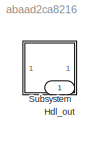
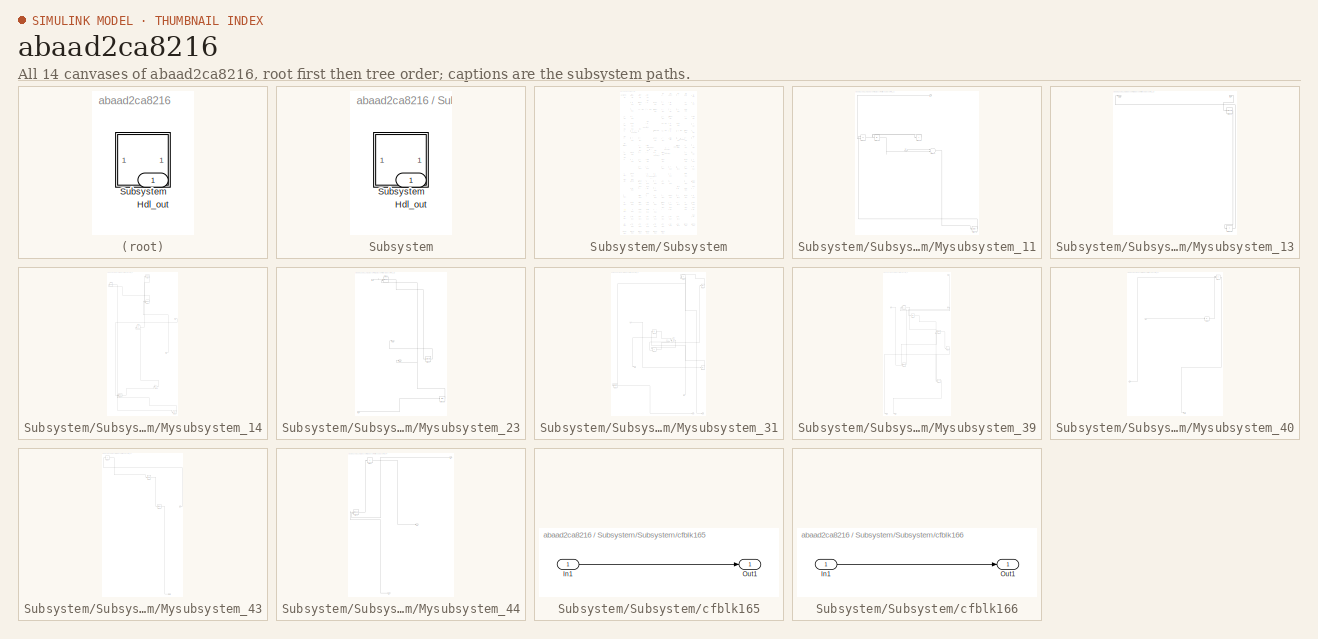
[diagram: thumbnail index - all 14 canvases of the model, root first then tree order]
MODEL slx_abaad2ca8216
KIND model
CONFIG AbsTol = auto
CONFIG EnableMultiTasking = off
CONFIG FixedStep = auto
CONFIG MaxStep = auto
CONFIG MinStep = auto
CONFIG RelTol = 1e-3
CONFIG SampleTimeConstraint = Unconstrained
CONFIG SolverName = VariableStepAuto
CONFIG StartTime = 0.0
CONFIG StopTime = 10.0
BLOCK [Outport] Hdl_out
  OutDataTypeStr = uint8
BLOCK [SubSystem] Subsystem
BLOCK [Outport] Subsystem/Hdl_out
  OutDataTypeStr = uint8
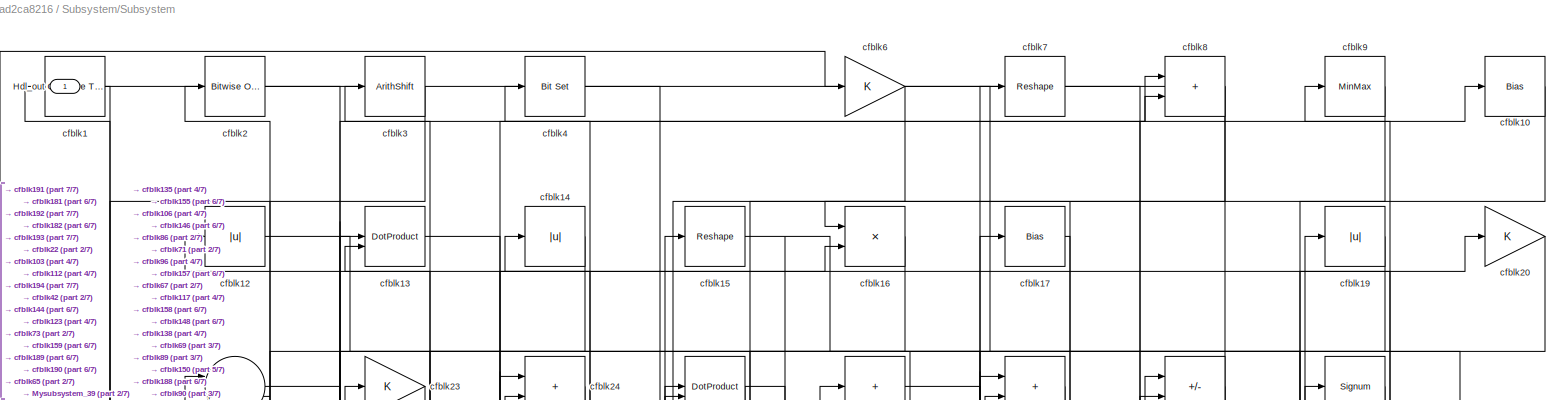
[diagram: Subsystem/Subsystem - part 1/7, full width, top band]
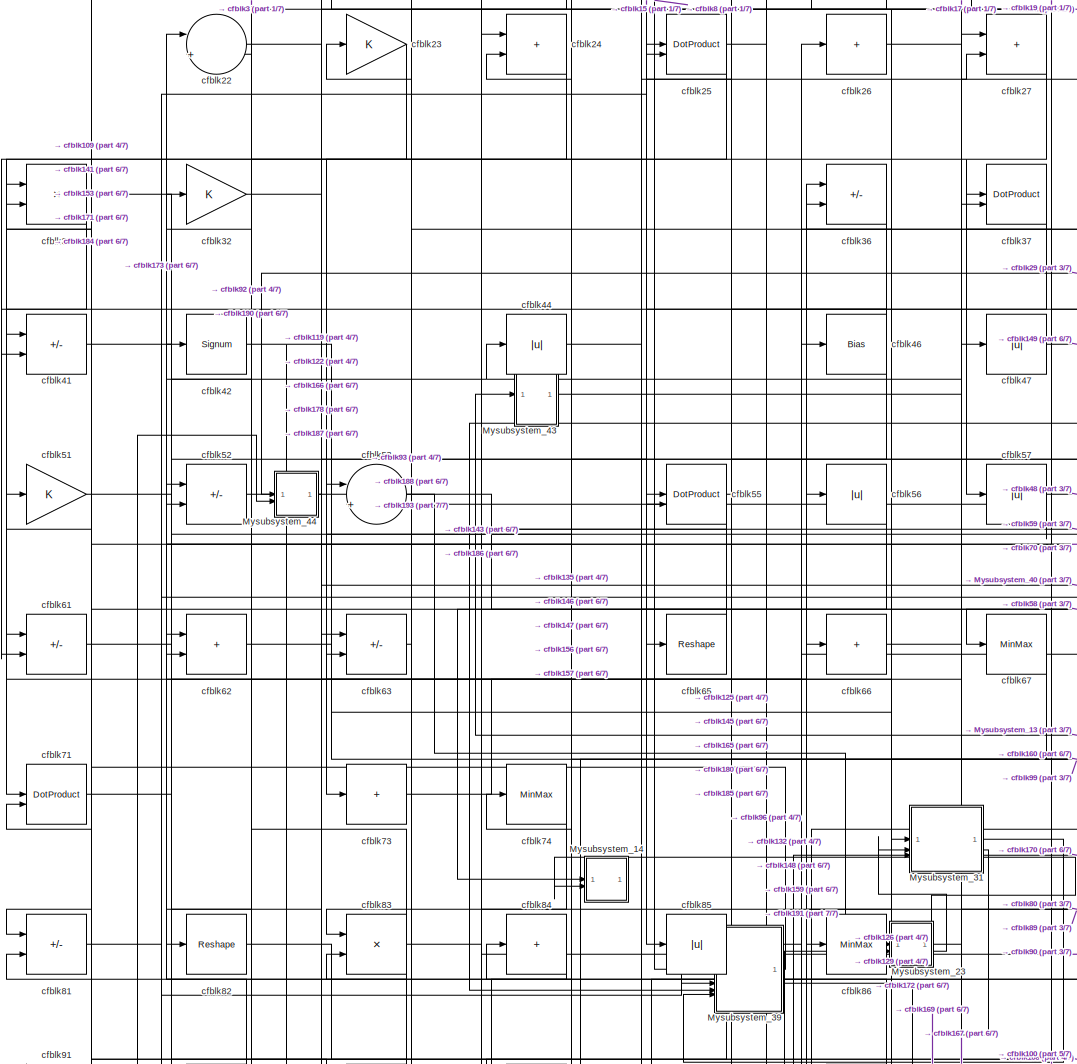
[diagram: Subsystem/Subsystem - part 2/7, top center region]
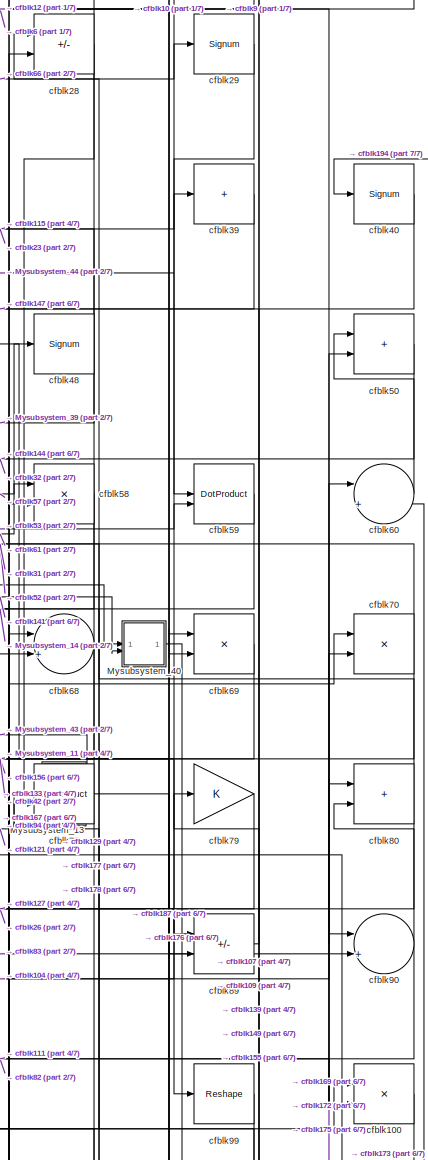
[diagram: Subsystem/Subsystem - part 3/7, top right region]
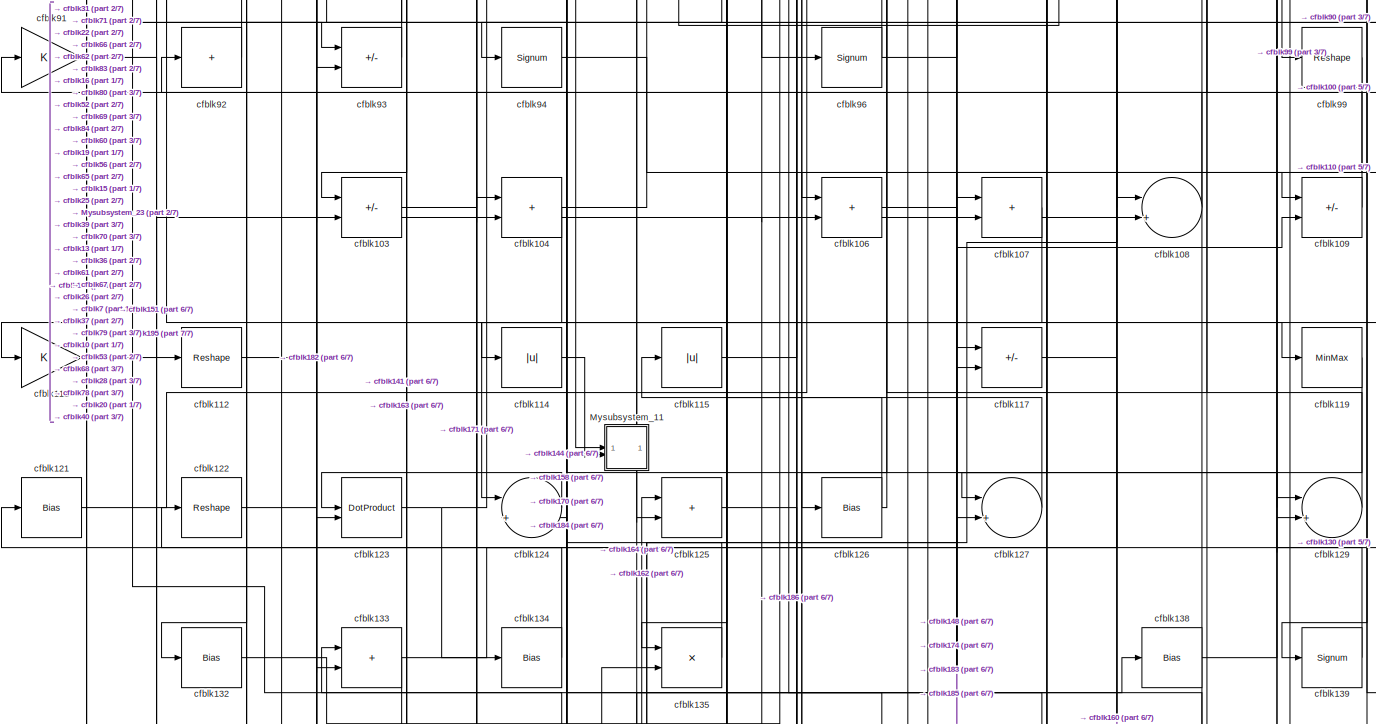
[diagram: Subsystem/Subsystem - part 4/7, full width, middle band]
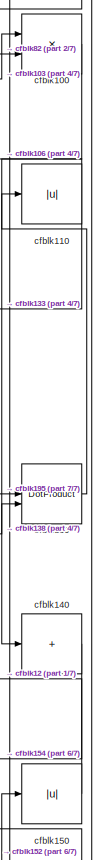
[diagram: Subsystem/Subsystem - part 5/7, middle right region]
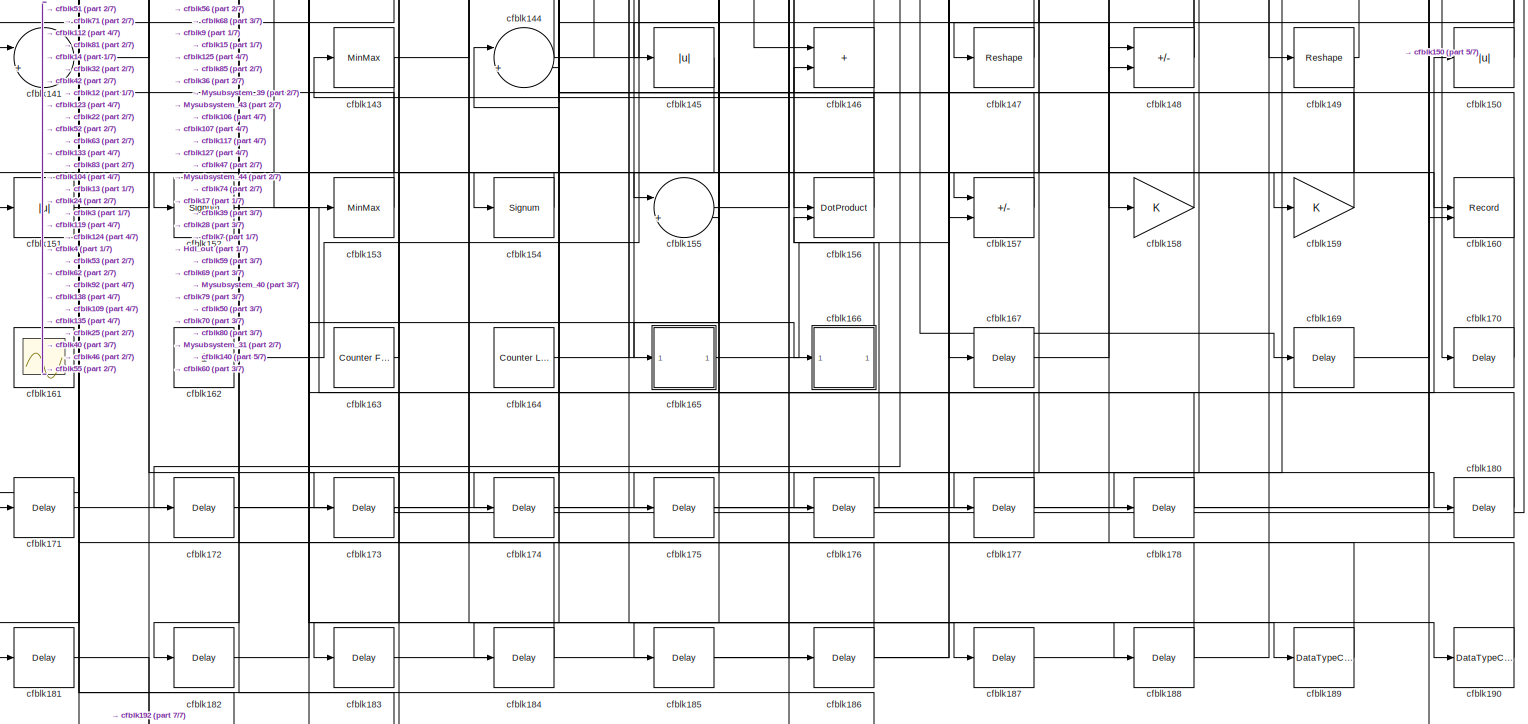
[diagram: Subsystem/Subsystem - part 6/7, full width, bottom band]
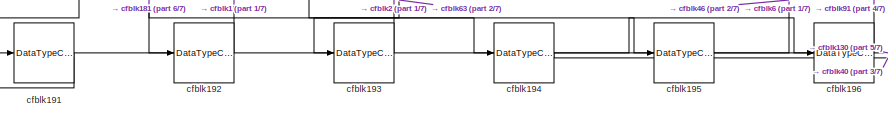
[diagram: Subsystem/Subsystem - part 7/7, bottom left region]
BLOCK [SubSystem] Subsystem/Subsystem
BLOCK [Outport] Subsystem/Subsystem/Hdl_out
  OutDataTypeStr = uint8
BLOCK [SubSystem] Subsystem/Subsystem/Mysubsystem_11
  RTWFcnName = Mysubsystem_11
  RTWFcnNameOpts = User specified
  RTWFileNameOpts = Use function name
  RTWSystemCode = Reusable function
  TreatAsAtomicUnit = on
BLOCK [Inport] Subsystem/Subsystem/Mysubsystem_11/In1
BLOCK [Inport] Subsystem/Subsystem/Mysubsystem_11/In2
  Port = 2
BLOCK [Sum] Subsystem/Subsystem/Mysubsystem_11/cfblk101
  IconShape = rectangular
  Inputs = +-
BLOCK [Abs] Subsystem/Subsystem/Mysubsystem_11/cfblk102
  SaturateOnIntegerOverflow = off
BLOCK [Sum] Subsystem/Subsystem/Mysubsystem_11/cfblk105
  IconShape = rectangular
  Inputs = +
BLOCK [Sum] Subsystem/Subsystem/Mysubsystem_11/cfblk116
  Inputs = |++
BLOCK [Delay] Subsystem/Subsystem/Mysubsystem_11/cfblk179
  InputPortMap = u0
  SampleTime = 1
BLOCK [SubSystem] Subsystem/Subsystem/Mysubsystem_13
  RTWFcnName = Mysubsystem_13
  RTWFcnNameOpts = User specified
  RTWFileNameOpts = Use function name
  RTWSystemCode = Reusable function
  TreatAsAtomicUnit = on
BLOCK [Inport] Subsystem/Subsystem/Mysubsystem_13/In1
BLOCK [Outport] Subsystem/Subsystem/Mysubsystem_13/Out1
BLOCK [Sum] Subsystem/Subsystem/Mysubsystem_13/cfblk118
  IconShape = rectangular
  Inputs = +
BLOCK [Signum] Subsystem/Subsystem/Mysubsystem_13/cfblk38
BLOCK [SubSystem] Subsystem/Subsystem/Mysubsystem_14
  RTWFcnName = Mysubsystem_14
  RTWFcnNameOpts = User specified
  RTWFileNameOpts = Use function name
  RTWSystemCode = Reusable function
  TreatAsAtomicUnit = on
BLOCK [Inport] Subsystem/Subsystem/Mysubsystem_14/In1
BLOCK [Inport] Subsystem/Subsystem/Mysubsystem_14/In2
  Port = 2
BLOCK [Reshape] Subsystem/Subsystem/Mysubsystem_14/cfblk11
BLOCK [Gain] Subsystem/Subsystem/Mysubsystem_14/cfblk136
BLOCK [DotProduct] Subsystem/Subsystem/Mysubsystem_14/cfblk142
  OutDataTypeStr = Inherit: Inherit via internal rule
BLOCK [Delay] Subsystem/Subsystem/Mysubsystem_14/cfblk168
  InputPortMap = u0
  SampleTime = 1
BLOCK [DotProduct] Subsystem/Subsystem/Mysubsystem_14/cfblk35
  OutDataTypeStr = Inherit: Inherit via internal rule
BLOCK [Reshape] Subsystem/Subsystem/Mysubsystem_14/cfblk5
BLOCK [Abs] Subsystem/Subsystem/Mysubsystem_14/cfblk64
  SaturateOnIntegerOverflow = off
BLOCK [SubSystem] Subsystem/Subsystem/Mysubsystem_23
  RTWFcnName = Mysubsystem_23
  RTWFcnNameOpts = User specified
  RTWFileNameOpts = Use function name
  RTWSystemCode = Reusable function
  TreatAsAtomicUnit = on
BLOCK [Inport] Subsystem/Subsystem/Mysubsystem_23/In1
BLOCK [Inport] Subsystem/Subsystem/Mysubsystem_23/In2
  Port = 2
BLOCK [Outport] Subsystem/Subsystem/Mysubsystem_23/Out1
BLOCK [Outport] Subsystem/Subsystem/Mysubsystem_23/Out2
  Port = 2
BLOCK [Bias] Subsystem/Subsystem/Mysubsystem_23/cfblk128
  Bias = 0.0
  SaturateOnIntegerOverflow = off
BLOCK [DotProduct] Subsystem/Subsystem/Mysubsystem_23/cfblk34
  OutDataTypeStr = Inherit: Inherit via internal rule
BLOCK [Signum] Subsystem/Subsystem/Mysubsystem_23/cfblk97
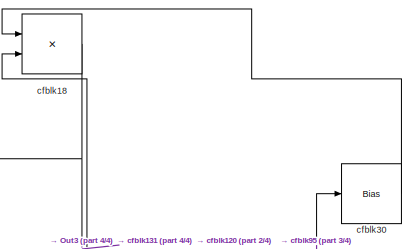
[diagram: Subsystem/Subsystem/Mysubsystem_31 - part 1/4, top right region]
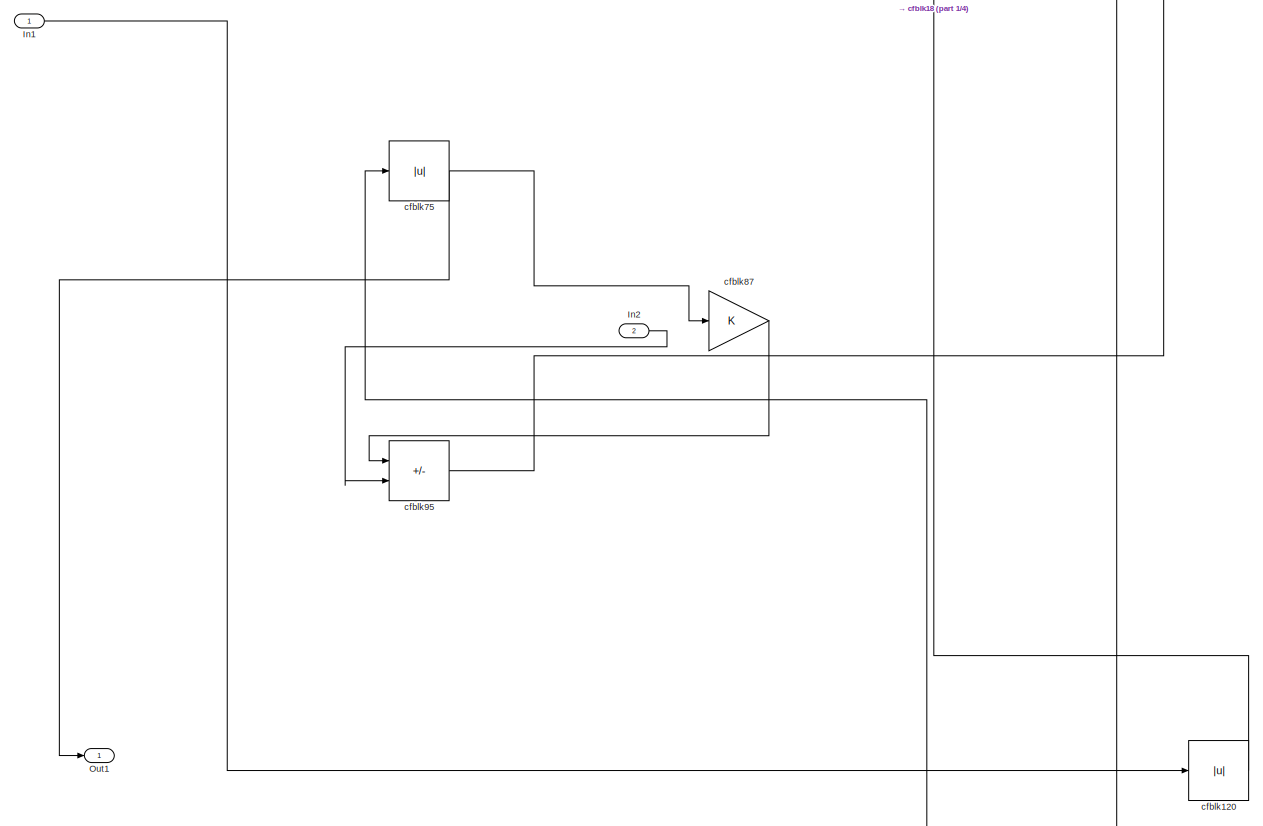
[diagram: Subsystem/Subsystem/Mysubsystem_31 - part 2/4, full width, middle band]
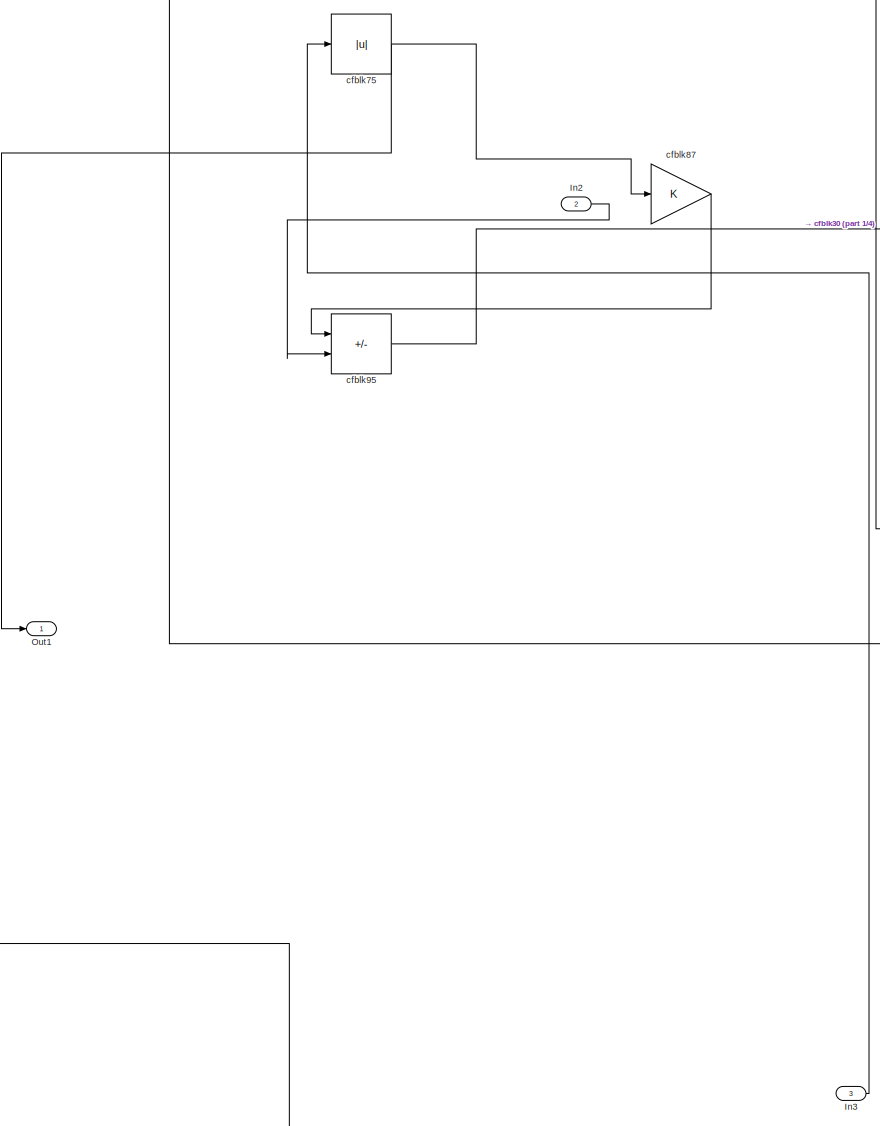
[diagram: Subsystem/Subsystem/Mysubsystem_31 - part 3/4, central region]
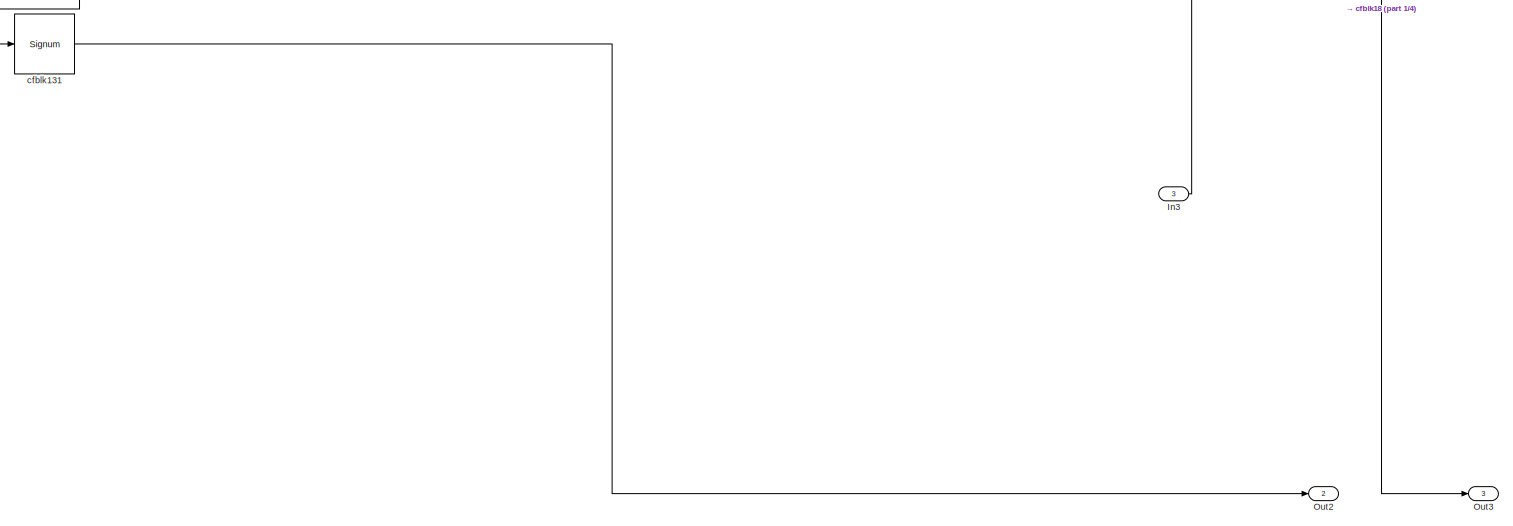
[diagram: Subsystem/Subsystem/Mysubsystem_31 - part 4/4, full width, bottom band]
BLOCK [SubSystem] Subsystem/Subsystem/Mysubsystem_31
  RTWFcnName = Mysubsystem_31
  RTWFcnNameOpts = User specified
  RTWFileNameOpts = Use function name
  RTWSystemCode = Reusable function
  TreatAsAtomicUnit = on
BLOCK [Inport] Subsystem/Subsystem/Mysubsystem_31/In1
BLOCK [Inport] Subsystem/Subsystem/Mysubsystem_31/In2
  Port = 2
BLOCK [Inport] Subsystem/Subsystem/Mysubsystem_31/In3
  Port = 3
BLOCK [Outport] Subsystem/Subsystem/Mysubsystem_31/Out1
BLOCK [Outport] Subsystem/Subsystem/Mysubsystem_31/Out2
  Port = 2
BLOCK [Outport] Subsystem/Subsystem/Mysubsystem_31/Out3
  Port = 3
BLOCK [Abs] Subsystem/Subsystem/Mysubsystem_31/cfblk120
  SaturateOnIntegerOverflow = off
BLOCK [Signum] Subsystem/Subsystem/Mysubsystem_31/cfblk131
BLOCK [Product] Subsystem/Subsystem/Mysubsystem_31/cfblk18
  Inputs = */
  RndMeth = Zero
  SaturateOnIntegerOverflow = on
BLOCK [Bias] Subsystem/Subsystem/Mysubsystem_31/cfblk30
  Bias = 0.0
  SaturateOnIntegerOverflow = off
BLOCK [Abs] Subsystem/Subsystem/Mysubsystem_31/cfblk75
  SaturateOnIntegerOverflow = off
BLOCK [Gain] Subsystem/Subsystem/Mysubsystem_31/cfblk87
BLOCK [Sum] Subsystem/Subsystem/Mysubsystem_31/cfblk95
  IconShape = rectangular
  Inputs = +-
BLOCK [SubSystem] Subsystem/Subsystem/Mysubsystem_39
  RTWFcnName = Mysubsystem_39
  RTWFcnNameOpts = User specified
  RTWFileNameOpts = Use function name
  RTWSystemCode = Reusable function
  TreatAsAtomicUnit = on
BLOCK [Inport] Subsystem/Subsystem/Mysubsystem_39/In1
BLOCK [Inport] Subsystem/Subsystem/Mysubsystem_39/In2
  Port = 2
BLOCK [Inport] Subsystem/Subsystem/Mysubsystem_39/In3
  Port = 3
BLOCK [Inport] Subsystem/Subsystem/Mysubsystem_39/In4
  Port = 4
BLOCK [Outport] Subsystem/Subsystem/Mysubsystem_39/Out1
BLOCK [Outport] Subsystem/Subsystem/Mysubsystem_39/Out2
  Port = 2
BLOCK [DotProduct] Subsystem/Subsystem/Mysubsystem_39/cfblk113
  OutDataTypeStr = Inherit: Inherit via internal rule
BLOCK [Sum] Subsystem/Subsystem/Mysubsystem_39/cfblk137
  IconShape = rectangular
  Inputs = +-
BLOCK [Sum] Subsystem/Subsystem/Mysubsystem_39/cfblk43
  IconShape = rectangular
BLOCK [Bias] Subsystem/Subsystem/Mysubsystem_39/cfblk54
  Bias = 0.0
  SaturateOnIntegerOverflow = off
BLOCK [Signum] Subsystem/Subsystem/Mysubsystem_39/cfblk77
BLOCK [Sum] Subsystem/Subsystem/Mysubsystem_39/cfblk98
  IconShape = rectangular
  Inputs = +
BLOCK [SubSystem] Subsystem/Subsystem/Mysubsystem_40
  RTWFcnName = Mysubsystem_40
  RTWFcnNameOpts = User specified
  RTWFileNameOpts = Use function name
  RTWSystemCode = Reusable function
  TreatAsAtomicUnit = on
BLOCK [Inport] Subsystem/Subsystem/Mysubsystem_40/In1
BLOCK [Inport] Subsystem/Subsystem/Mysubsystem_40/In2
  Port = 2
BLOCK [Outport] Subsystem/Subsystem/Mysubsystem_40/Out1
BLOCK [Product] Subsystem/Subsystem/Mysubsystem_40/cfblk49
  Inputs = */
  RndMeth = Zero
  SaturateOnIntegerOverflow = on
BLOCK [Abs] Subsystem/Subsystem/Mysubsystem_40/cfblk88
  SaturateOnIntegerOverflow = off
BLOCK [SubSystem] Subsystem/Subsystem/Mysubsystem_43
  RTWFcnName = Mysubsystem_43
  RTWFcnNameOpts = User specified
  RTWFileNameOpts = Use function name
  RTWSystemCode = Reusable function
  TreatAsAtomicUnit = on
BLOCK [Inport] Subsystem/Subsystem/Mysubsystem_43/In1
BLOCK [Outport] Subsystem/Subsystem/Mysubsystem_43/Out1
BLOCK [Sum] Subsystem/Subsystem/Mysubsystem_43/cfblk21
  IconShape = rectangular
  Inputs = +
BLOCK [MinMax] Subsystem/Subsystem/Mysubsystem_43/cfblk45
BLOCK [MinMax] Subsystem/Subsystem/Mysubsystem_43/cfblk76
BLOCK [SubSystem] Subsystem/Subsystem/Mysubsystem_44
  RTWFcnName = Mysubsystem_44
  RTWFcnNameOpts = User specified
  RTWFileNameOpts = Use function name
  RTWSystemCode = Reusable function
  TreatAsAtomicUnit = on
BLOCK [Inport] Subsystem/Subsystem/Mysubsystem_44/In1
BLOCK [Inport] Subsystem/Subsystem/Mysubsystem_44/In2
  Port = 2
BLOCK [Outport] Subsystem/Subsystem/Mysubsystem_44/Out1
BLOCK [Sum] Subsystem/Subsystem/Mysubsystem_44/cfblk33
  IconShape = rectangular
  Inputs = +
BLOCK [DotProduct] Subsystem/Subsystem/Mysubsystem_44/cfblk72
  OutDataTypeStr = Inherit: Inherit via internal rule
BLOCK [Reference] Subsystem/Subsystem/cfblk1  REF=hdlsllib/Logic and Bit
Operations/Compare
To Zero
  SourceBlock = hdlsllib/Logic and Bit\nOperations/Compare\nTo Zero
  SourceType = Compare To Zero
BLOCK [Bias] Subsystem/Subsystem/cfblk10
  Bias = 0.0
  SaturateOnIntegerOverflow = off
BLOCK [Product] Subsystem/Subsystem/cfblk100
  Inputs = */
  OutDataTypeStr = uint8
  RndMeth = Zero
  SaturateOnIntegerOverflow = on
BLOCK [Sum] Subsystem/Subsystem/cfblk103
  IconShape = rectangular
  Inputs = +-
  OutDataTypeStr = uint8
BLOCK [Sum] Subsystem/Subsystem/cfblk104
  IconShape = rectangular
  OutDataTypeStr = uint8
BLOCK [Sum] Subsystem/Subsystem/cfblk106
  IconShape = rectangular
  OutDataTypeStr = uint8
BLOCK [Sum] Subsystem/Subsystem/cfblk107
  IconShape = rectangular
  OutDataTypeStr = uint8
BLOCK [Sum] Subsystem/Subsystem/cfblk108
  Inputs = |++
  OutDataTypeStr = uint8
BLOCK [Sum] Subsystem/Subsystem/cfblk109
  IconShape = rectangular
  Inputs = +-
  OutDataTypeStr = uint8
BLOCK [Abs] Subsystem/Subsystem/cfblk110
  OutDataTypeStr = uint8
  SaturateOnIntegerOverflow = off
BLOCK [Gain] Subsystem/Subsystem/cfblk111
  OutDataTypeStr = uint8
BLOCK [Reshape] Subsystem/Subsystem/cfblk112
BLOCK [Abs] Subsystem/Subsystem/cfblk114
  OutDataTypeStr = uint8
  SaturateOnIntegerOverflow = off
BLOCK [Abs] Subsystem/Subsystem/cfblk115
  OutDataTypeStr = uint8
  SaturateOnIntegerOverflow = off
BLOCK [Sum] Subsystem/Subsystem/cfblk117
  IconShape = rectangular
  Inputs = +-
  OutDataTypeStr = uint8
BLOCK [MinMax] Subsystem/Subsystem/cfblk119
  OutDataTypeStr = uint8
BLOCK [Abs] Subsystem/Subsystem/cfblk12
  OutDataTypeStr = uint8
  SaturateOnIntegerOverflow = off
BLOCK [Bias] Subsystem/Subsystem/cfblk121
  Bias = 0.0
  SaturateOnIntegerOverflow = off
BLOCK [Reshape] Subsystem/Subsystem/cfblk122
BLOCK [DotProduct] Subsystem/Subsystem/cfblk123
  OutDataTypeStr = uint8
BLOCK [Sum] Subsystem/Subsystem/cfblk124
  Inputs = |++
  OutDataTypeStr = uint8
BLOCK [Sum] Subsystem/Subsystem/cfblk125
  IconShape = rectangular
  OutDataTypeStr = uint8
BLOCK [Bias] Subsystem/Subsystem/cfblk126
  Bias = 0.0
  SaturateOnIntegerOverflow = off
BLOCK [Sum] Subsystem/Subsystem/cfblk127
  Inputs = |++
  OutDataTypeStr = uint8
BLOCK [Sum] Subsystem/Subsystem/cfblk129
  Inputs = |++
  OutDataTypeStr = uint8
BLOCK [DotProduct] Subsystem/Subsystem/cfblk13
  OutDataTypeStr = uint8
BLOCK [DotProduct] Subsystem/Subsystem/cfblk130
  OutDataTypeStr = uint8
BLOCK [Bias] Subsystem/Subsystem/cfblk132
  Bias = 0.0
  SaturateOnIntegerOverflow = off
BLOCK [Sum] Subsystem/Subsystem/cfblk133
  IconShape = rectangular
  OutDataTypeStr = uint8
BLOCK [Bias] Subsystem/Subsystem/cfblk134
  Bias = 0.0
  SaturateOnIntegerOverflow = off
BLOCK [Product] Subsystem/Subsystem/cfblk135
  Inputs = */
  OutDataTypeStr = uint8
  RndMeth = Zero
  SaturateOnIntegerOverflow = on
BLOCK [Bias] Subsystem/Subsystem/cfblk138
  Bias = 0.0
  SaturateOnIntegerOverflow = off
BLOCK [Signum] Subsystem/Subsystem/cfblk139
BLOCK [Abs] Subsystem/Subsystem/cfblk14
  OutDataTypeStr = uint8
  SaturateOnIntegerOverflow = off
BLOCK [Sum] Subsystem/Subsystem/cfblk140
  IconShape = rectangular
  Inputs = +
  OutDataTypeStr = uint8
BLOCK [Sum] Subsystem/Subsystem/cfblk141
  Inputs = |++
  OutDataTypeStr = uint8
BLOCK [MinMax] Subsystem/Subsystem/cfblk143
  OutDataTypeStr = uint8
BLOCK [Sum] Subsystem/Subsystem/cfblk144
  Inputs = |++
  OutDataTypeStr = uint8
BLOCK [Abs] Subsystem/Subsystem/cfblk145
  OutDataTypeStr = uint8
  SaturateOnIntegerOverflow = off
BLOCK [Sum] Subsystem/Subsystem/cfblk146
  IconShape = rectangular
  OutDataTypeStr = uint8
BLOCK [Reshape] Subsystem/Subsystem/cfblk147
BLOCK [Sum] Subsystem/Subsystem/cfblk148
  IconShape = rectangular
  Inputs = +-
  OutDataTypeStr = uint8
BLOCK [Reshape] Subsystem/Subsystem/cfblk149
BLOCK [Reshape] Subsystem/Subsystem/cfblk15
BLOCK [Abs] Subsystem/Subsystem/cfblk150
  OutDataTypeStr = uint8
  SaturateOnIntegerOverflow = off
BLOCK [Abs] Subsystem/Subsystem/cfblk151
  OutDataTypeStr = uint8
  SaturateOnIntegerOverflow = off
BLOCK [Signum] Subsystem/Subsystem/cfblk152
BLOCK [MinMax] Subsystem/Subsystem/cfblk153
  OutDataTypeStr = uint8
BLOCK [Signum] Subsystem/Subsystem/cfblk154
BLOCK [Sum] Subsystem/Subsystem/cfblk155
  Inputs = |++
  OutDataTypeStr = uint8
BLOCK [DotProduct] Subsystem/Subsystem/cfblk156
  OutDataTypeStr = uint8
BLOCK [Sum] Subsystem/Subsystem/cfblk157
  IconShape = rectangular
  Inputs = +-
  OutDataTypeStr = uint8
BLOCK [Gain] Subsystem/Subsystem/cfblk158
  OutDataTypeStr = uint8
BLOCK [Gain] Subsystem/Subsystem/cfblk159
  OutDataTypeStr = uint8
BLOCK [Product] Subsystem/Subsystem/cfblk16
  Inputs = */
  OutDataTypeStr = uint8
  RndMeth = Zero
  SaturateOnIntegerOverflow = on
BLOCK [Record] Subsystem/Subsystem/cfblk160
  CompatibilityTag = XY
  FileSettingsInternal = {"entries":[{"content":{"excelSettings":{"content":{},"type":"Streamout.ExcelSettings"}},"type":"Streamout.FileSettingStorage","uuid":""}],"packageUris":["http:\/\/schema.mathworks.com\/mf0\/streamout_blocks\/R2020a"],"version":"1.0"}
  Layout = [1 1]
  SignalsInternal = {"entries":[{"content":{"signals":[{"content":{"blockPath":[],"dimensions":[1],"domain":"","lineColor":"#a2142f","plots":[1],"port":1,"signalID":58083,"signalName":"cfblk117"},"type":"RecordBlkView.Signal","uuid":""},{"content":{"blockPath":[],"dimensions":[1],"domain":"","lineColor":"#139fff","plots":[1],"port":2,"signalID":58086,"signalName":"cfblk42"},"type":"RecordBlkView.Signal","uuid":""}]},...<+143ch>
  VisualizationBindings = {"xyplotplugin":{"info":[{"series":[{"bindingParametersList":[{"parameter":"X-Axis","signalID":58083,"signalName":"cfblk117"},{"parameter":"Y-Axis","signalID":58086,"signalName":"cfblk42"}],"seriesID":16006}],"subplotID":1}]}}
  st = -1
BLOCK [Scope] Subsystem/Subsystem/cfblk161
  Floating = on
  NumInputPorts = 1
  ScopeSpecificationString = Simulink.scopes.TimeScopeBlockCfg('CurrentConfiguration', extmgr.ConfigurationSet(extmgr.Configuration('Core','General UI',true,'FigureColor',[0.156862745098039 0.156862745098039 0.156862745098039]),extmgr.Configuration('Core','Source UI',true),extmgr.Configuration('Sources','WiredSimulink',true,'DataLoggingSaveFormat','StructureWithTime','DataLoggingLimitDataPoints',true,'DataLoggingDecimation','...<+2674ch>
BLOCK [Constant] Subsystem/Subsystem/cfblk162
  OutDataTypeStr = uint8
  SampleTime = -1
BLOCK [Reference] Subsystem/Subsystem/cfblk163  REF=hdlsllib/Sources/Counter
Free-Running
  SourceBlock = hdlsllib/Sources/Counter\nFree-Running
  SourceType = Counter Free-Running
BLOCK [Reference] Subsystem/Subsystem/cfblk164  REF=hdlsllib/Sources/Counter
Limited
  SourceBlock = hdlsllib/Sources/Counter\nLimited
  SourceType = Counter Limited
BLOCK [SubSystem] Subsystem/Subsystem/cfblk165
  LibrarySourceBlock = hdlsllib/Ports &\nSubsystems/Subsystem
BLOCK [Inport] Subsystem/Subsystem/cfblk165/In1
BLOCK [Outport] Subsystem/Subsystem/cfblk165/Out1
BLOCK [SubSystem] Subsystem/Subsystem/cfblk166
  LibrarySourceBlock = hdlsllib/Ports &\nSubsystems/Subsystem
BLOCK [Inport] Subsystem/Subsystem/cfblk166/In1
BLOCK [Outport] Subsystem/Subsystem/cfblk166/Out1
BLOCK [Delay] Subsystem/Subsystem/cfblk167
  InputPortMap = u0
  SampleTime = 1
BLOCK [Delay] Subsystem/Subsystem/cfblk169
  InputPortMap = u0
  SampleTime = 1
BLOCK [Bias] Subsystem/Subsystem/cfblk17
  Bias = 0.0
  SaturateOnIntegerOverflow = off
BLOCK [Delay] Subsystem/Subsystem/cfblk170
  InputPortMap = u0
  SampleTime = 1
BLOCK [Delay] Subsystem/Subsystem/cfblk171
  InputPortMap = u0
  SampleTime = 1
BLOCK [Delay] Subsystem/Subsystem/cfblk172
  InputPortMap = u0
  SampleTime = 1
BLOCK [Delay] Subsystem/Subsystem/cfblk173
  InputPortMap = u0
  SampleTime = 1
BLOCK [Delay] Subsystem/Subsystem/cfblk174
  InputPortMap = u0
  SampleTime = 1
BLOCK [Delay] Subsystem/Subsystem/cfblk175
  InputPortMap = u0
  SampleTime = 1
BLOCK [Delay] Subsystem/Subsystem/cfblk176
  InputPortMap = u0
  SampleTime = 1
BLOCK [Delay] Subsystem/Subsystem/cfblk177
  InputPortMap = u0
  SampleTime = 1
BLOCK [Delay] Subsystem/Subsystem/cfblk178
  InputPortMap = u0
  SampleTime = 1
BLOCK [Delay] Subsystem/Subsystem/cfblk180
  InputPortMap = u0
  SampleTime = 1
BLOCK [Delay] Subsystem/Subsystem/cfblk181
  InputPortMap = u0
  SampleTime = 1
BLOCK [Delay] Subsystem/Subsystem/cfblk182
  InputPortMap = u0
  SampleTime = 1
BLOCK [Delay] Subsystem/Subsystem/cfblk183
  InputPortMap = u0
  SampleTime = 1
BLOCK [Delay] Subsystem/Subsystem/cfblk184
  InputPortMap = u0
  SampleTime = 1
BLOCK [Delay] Subsystem/Subsystem/cfblk185
  InputPortMap = u0
  SampleTime = 1
BLOCK [Delay] Subsystem/Subsystem/cfblk186
  InputPortMap = u0
  SampleTime = 1
BLOCK [Delay] Subsystem/Subsystem/cfblk187
  InputPortMap = u0
  SampleTime = 1
BLOCK [Delay] Subsystem/Subsystem/cfblk188
  InputPortMap = u0
  SampleTime = 1
BLOCK [DataTypeConversion] Subsystem/Subsystem/cfblk189
  OutDataTypeStr = uint8
  RndMeth = Floor
  SaturateOnIntegerOverflow = off
BLOCK [Abs] Subsystem/Subsystem/cfblk19
  OutDataTypeStr = uint8
  SaturateOnIntegerOverflow = off
BLOCK [DataTypeConversion] Subsystem/Subsystem/cfblk190
  OutDataTypeStr = uint8
  RndMeth = Floor
  SaturateOnIntegerOverflow = off
BLOCK [DataTypeConversion] Subsystem/Subsystem/cfblk191
  OutDataTypeStr = uint8
  RndMeth = Floor
  SaturateOnIntegerOverflow = off
BLOCK [DataTypeConversion] Subsystem/Subsystem/cfblk192
  OutDataTypeStr = uint8
  RndMeth = Floor
  SaturateOnIntegerOverflow = off
BLOCK [DataTypeConversion] Subsystem/Subsystem/cfblk193
  OutDataTypeStr = uint8
  RndMeth = Floor
  SaturateOnIntegerOverflow = off
BLOCK [DataTypeConversion] Subsystem/Subsystem/cfblk194
  OutDataTypeStr = uint8
  RndMeth = Floor
  SaturateOnIntegerOverflow = off
BLOCK [DataTypeConversion] Subsystem/Subsystem/cfblk195
  OutDataTypeStr = uint8
  RndMeth = Floor
  SaturateOnIntegerOverflow = off
BLOCK [DataTypeConversion] Subsystem/Subsystem/cfblk196
  OutDataTypeStr = uint8
  RndMeth = Floor
  SaturateOnIntegerOverflow = off
BLOCK [Reference] Subsystem/Subsystem/cfblk2  REF=simulink/Logic and Bit
Operations/Bitwise
Operator
  LibrarySourceBlock = hdlsllib/Logic and Bit\nOperations/Bitwise\nOperator
  SourceBlock = simulink/Logic and Bit\nOperations/Bitwise\nOperator
  SourceType = Bitwise Operator
BLOCK [Gain] Subsystem/Subsystem/cfblk20
  OutDataTypeStr = uint8
BLOCK [Sum] Subsystem/Subsystem/cfblk22
  Inputs = |++
  OutDataTypeStr = uint8
BLOCK [Gain] Subsystem/Subsystem/cfblk23
  OutDataTypeStr = uint8
BLOCK [Sum] Subsystem/Subsystem/cfblk24
  IconShape = rectangular
  OutDataTypeStr = uint8
BLOCK [DotProduct] Subsystem/Subsystem/cfblk25
  OutDataTypeStr = uint8
BLOCK [Sum] Subsystem/Subsystem/cfblk26
  IconShape = rectangular
  Inputs = +
  OutDataTypeStr = uint8
BLOCK [Sum] Subsystem/Subsystem/cfblk27
  IconShape = rectangular
  OutDataTypeStr = uint8
BLOCK [Sum] Subsystem/Subsystem/cfblk28
  IconShape = rectangular
  Inputs = +-
  OutDataTypeStr = uint8
BLOCK [Signum] Subsystem/Subsystem/cfblk29
BLOCK [ArithShift] Subsystem/Subsystem/cfblk3
  BitShiftNumber = 8
  InputPortMap = u0
BLOCK [Product] Subsystem/Subsystem/cfblk31
  Inputs = */
  OutDataTypeStr = uint8
  RndMeth = Zero
  SaturateOnIntegerOverflow = on
BLOCK [Gain] Subsystem/Subsystem/cfblk32
  OutDataTypeStr = uint8
BLOCK [Sum] Subsystem/Subsystem/cfblk36
  IconShape = rectangular
  Inputs = +-
  OutDataTypeStr = uint8
BLOCK [DotProduct] Subsystem/Subsystem/cfblk37
  OutDataTypeStr = uint8
BLOCK [Sum] Subsystem/Subsystem/cfblk39
  IconShape = rectangular
  Inputs = +
  OutDataTypeStr = uint8
BLOCK [Reference] Subsystem/Subsystem/cfblk4  REF=simulink/Logic and Bit
Operations/Bit Set
  LibrarySourceBlock = hdlsllib/Logic and Bit\nOperations/Bit Set
  SourceBlock = simulink/Logic and Bit\nOperations/Bit Set
  SourceType = Bit Set
BLOCK [Signum] Subsystem/Subsystem/cfblk40
BLOCK [Sum] Subsystem/Subsystem/cfblk41
  IconShape = rectangular
  Inputs = +-
  OutDataTypeStr = uint8
BLOCK [Signum] Subsystem/Subsystem/cfblk42
BLOCK [Abs] Subsystem/Subsystem/cfblk44
  OutDataTypeStr = uint8
  SaturateOnIntegerOverflow = off
BLOCK [Bias] Subsystem/Subsystem/cfblk46
  Bias = 0.0
  SaturateOnIntegerOverflow = off
BLOCK [Abs] Subsystem/Subsystem/cfblk47
  OutDataTypeStr = uint8
  SaturateOnIntegerOverflow = off
BLOCK [Signum] Subsystem/Subsystem/cfblk48
BLOCK [Sum] Subsystem/Subsystem/cfblk50
  IconShape = rectangular
  OutDataTypeStr = uint8
BLOCK [Gain] Subsystem/Subsystem/cfblk51
  OutDataTypeStr = uint8
BLOCK [Sum] Subsystem/Subsystem/cfblk52
  IconShape = rectangular
  Inputs = +-
  OutDataTypeStr = uint8
BLOCK [Sum] Subsystem/Subsystem/cfblk53
  Inputs = |++
  OutDataTypeStr = uint8
BLOCK [DotProduct] Subsystem/Subsystem/cfblk55
  OutDataTypeStr = uint8
BLOCK [Abs] Subsystem/Subsystem/cfblk56
  OutDataTypeStr = uint8
  SaturateOnIntegerOverflow = off
BLOCK [Abs] Subsystem/Subsystem/cfblk57
  OutDataTypeStr = uint8
  SaturateOnIntegerOverflow = off
BLOCK [Product] Subsystem/Subsystem/cfblk58
  Inputs = */
  OutDataTypeStr = uint8
  RndMeth = Zero
  SaturateOnIntegerOverflow = on
BLOCK [DotProduct] Subsystem/Subsystem/cfblk59
  OutDataTypeStr = uint8
BLOCK [Gain] Subsystem/Subsystem/cfblk6
  OutDataTypeStr = uint8
BLOCK [Sum] Subsystem/Subsystem/cfblk60
  Inputs = |++
  OutDataTypeStr = uint8
BLOCK [Sum] Subsystem/Subsystem/cfblk61
  IconShape = rectangular
  Inputs = +-
  OutDataTypeStr = uint8
BLOCK [Sum] Subsystem/Subsystem/cfblk62
  IconShape = rectangular
  OutDataTypeStr = uint8
BLOCK [Sum] Subsystem/Subsystem/cfblk63
  IconShape = rectangular
  Inputs = +-
  OutDataTypeStr = uint8
BLOCK [Reshape] Subsystem/Subsystem/cfblk65
BLOCK [Sum] Subsystem/Subsystem/cfblk66
  IconShape = rectangular
  Inputs = +
  OutDataTypeStr = uint8
BLOCK [MinMax] Subsystem/Subsystem/cfblk67
  OutDataTypeStr = uint8
BLOCK [Sum] Subsystem/Subsystem/cfblk68
  Inputs = |++
  OutDataTypeStr = uint8
BLOCK [Product] Subsystem/Subsystem/cfblk69
  Inputs = */
  OutDataTypeStr = uint8
  RndMeth = Zero
  SaturateOnIntegerOverflow = on
BLOCK [Reshape] Subsystem/Subsystem/cfblk7
BLOCK [Product] Subsystem/Subsystem/cfblk70
  Inputs = */
  OutDataTypeStr = uint8
  RndMeth = Zero
  SaturateOnIntegerOverflow = on
BLOCK [DotProduct] Subsystem/Subsystem/cfblk71
  OutDataTypeStr = uint8
BLOCK [Sum] Subsystem/Subsystem/cfblk73
  IconShape = rectangular
  Inputs = +
  OutDataTypeStr = uint8
BLOCK [MinMax] Subsystem/Subsystem/cfblk74
  OutDataTypeStr = uint8
BLOCK [DotProduct] Subsystem/Subsystem/cfblk78
  OutDataTypeStr = uint8
BLOCK [Gain] Subsystem/Subsystem/cfblk79
  OutDataTypeStr = uint8
BLOCK [Sum] Subsystem/Subsystem/cfblk8
  IconShape = rectangular
  OutDataTypeStr = uint8
BLOCK [Sum] Subsystem/Subsystem/cfblk80
  IconShape = rectangular
  OutDataTypeStr = uint8
BLOCK [Sum] Subsystem/Subsystem/cfblk81
  IconShape = rectangular
  Inputs = +-
  OutDataTypeStr = uint8
BLOCK [Reshape] Subsystem/Subsystem/cfblk82
BLOCK [Product] Subsystem/Subsystem/cfblk83
  Inputs = */
  OutDataTypeStr = uint8
  RndMeth = Zero
  SaturateOnIntegerOverflow = on
BLOCK [Sum] Subsystem/Subsystem/cfblk84
  IconShape = rectangular
  Inputs = +
  OutDataTypeStr = uint8
BLOCK [Abs] Subsystem/Subsystem/cfblk85
  OutDataTypeStr = uint8
  SaturateOnIntegerOverflow = off
BLOCK [MinMax] Subsystem/Subsystem/cfblk86
  OutDataTypeStr = uint8
BLOCK [Sum] Subsystem/Subsystem/cfblk89
  IconShape = rectangular
  Inputs = +-
  OutDataTypeStr = uint8
BLOCK [MinMax] Subsystem/Subsystem/cfblk9
  OutDataTypeStr = uint8
BLOCK [Sum] Subsystem/Subsystem/cfblk90
  Inputs = |++
  OutDataTypeStr = uint8
BLOCK [Gain] Subsystem/Subsystem/cfblk91
  OutDataTypeStr = uint8
BLOCK [Sum] Subsystem/Subsystem/cfblk92
  IconShape = rectangular
  Inputs = +
  OutDataTypeStr = uint8
BLOCK [Sum] Subsystem/Subsystem/cfblk93
  IconShape = rectangular
  Inputs = +-
  OutDataTypeStr = uint8
BLOCK [Signum] Subsystem/Subsystem/cfblk94
BLOCK [Signum] Subsystem/Subsystem/cfblk96
BLOCK [Reshape] Subsystem/Subsystem/cfblk99
LINE Subsystem/Subsystem/Mysubsystem_11/In1:1 -> Subsystem/Subsystem/Mysubsystem_11/cfblk101:2
LINE Subsystem/Subsystem/Mysubsystem_11/In2:1 -> Subsystem/Subsystem/Mysubsystem_11/cfblk116:1
LINE Subsystem/Subsystem/Mysubsystem_11/cfblk101:1 -> Subsystem/Subsystem/Mysubsystem_11/cfblk105:1
LINE Subsystem/Subsystem/Mysubsystem_11/cfblk102:1 -> Subsystem/Subsystem/Mysubsystem_11/cfblk116:2
LINE Subsystem/Subsystem/Mysubsystem_11/cfblk105:1 -> Subsystem/Subsystem/Mysubsystem_11/cfblk102:1
LINE Subsystem/Subsystem/Mysubsystem_11/cfblk116:1 -> Subsystem/Subsystem/Mysubsystem_11/cfblk179:1
LINE Subsystem/Subsystem/Mysubsystem_11/cfblk179:1 -> Subsystem/Subsystem/Mysubsystem_11/cfblk101:1
LINE Subsystem/Subsystem/Mysubsystem_13/In1:1 -> Subsystem/Subsystem/Mysubsystem_13/cfblk38:1
LINE Subsystem/Subsystem/Mysubsystem_13/cfblk118:1 -> Subsystem/Subsystem/Mysubsystem_13/Out1:1
LINE Subsystem/Subsystem/Mysubsystem_13/cfblk38:1 -> Subsystem/Subsystem/Mysubsystem_13/cfblk118:1
LINE Subsystem/Subsystem/Mysubsystem_13:1 -> Subsystem/Subsystem/Mysubsystem_43:1
LINE Subsystem/Subsystem/Mysubsystem_14/In1:1 -> Subsystem/Subsystem/Mysubsystem_14/cfblk142:2
LINE Subsystem/Subsystem/Mysubsystem_14/In2:1 -> Subsystem/Subsystem/Mysubsystem_14/cfblk35:1
LINE Subsystem/Subsystem/Mysubsystem_14/cfblk11:1 -> Subsystem/Subsystem/Mysubsystem_14/cfblk168:1
LINE Subsystem/Subsystem/Mysubsystem_14/cfblk136:1 -> Subsystem/Subsystem/Mysubsystem_14/cfblk64:1
LINE Subsystem/Subsystem/Mysubsystem_14/cfblk142:1 -> Subsystem/Subsystem/Mysubsystem_14/cfblk136:1
LINE Subsystem/Subsystem/Mysubsystem_14/cfblk168:1 -> Subsystem/Subsystem/Mysubsystem_14/cfblk142:1
LINE Subsystem/Subsystem/Mysubsystem_14/cfblk35:1 -> Subsystem/Subsystem/Mysubsystem_14/cfblk11:1
LINE Subsystem/Subsystem/Mysubsystem_14/cfblk5:1 -> Subsystem/Subsystem/Mysubsystem_14/cfblk35:2
LINE Subsystem/Subsystem/Mysubsystem_14/cfblk64:1 -> Subsystem/Subsystem/Mysubsystem_14/cfblk5:1
LINE Subsystem/Subsystem/Mysubsystem_23/In1:1 -> Subsystem/Subsystem/Mysubsystem_23/cfblk34:1
LINE Subsystem/Subsystem/Mysubsystem_23/In2:1 -> Subsystem/Subsystem/Mysubsystem_23/cfblk128:1
NET Subsystem/Subsystem/Mysubsystem_23/cfblk128:1 -> Subsystem/Subsystem/Mysubsystem_23/Out2:1, Subsystem/Subsystem/Mysubsystem_23/cfblk34:2
LINE Subsystem/Subsystem/Mysubsystem_23/cfblk34:1 -> Subsystem/Subsystem/Mysubsystem_23/cfblk97:1
LINE Subsystem/Subsystem/Mysubsystem_23/cfblk97:1 -> Subsystem/Subsystem/Mysubsystem_23/Out1:1
LINE Subsystem/Subsystem/Mysubsystem_23:1 -> Subsystem/Subsystem/Mysubsystem_14:2
LINE Subsystem/Subsystem/Mysubsystem_23:2 -> Subsystem/Subsystem/Mysubsystem_31:2
LINE Subsystem/Subsystem/Mysubsystem_31/In1:1 -> Subsystem/Subsystem/Mysubsystem_31/cfblk120:1
LINE Subsystem/Subsystem/Mysubsystem_31/In2:1 -> Subsystem/Subsystem/Mysubsystem_31/cfblk95:2
LINE Subsystem/Subsystem/Mysubsystem_31/In3:1 -> Subsystem/Subsystem/Mysubsystem_31/cfblk75:1
LINE Subsystem/Subsystem/Mysubsystem_31/cfblk120:1 -> Subsystem/Subsystem/Mysubsystem_31/cfblk18:2
LINE Subsystem/Subsystem/Mysubsystem_31/cfblk131:1 -> Subsystem/Subsystem/Mysubsystem_31/Out2:1
NET Subsystem/Subsystem/Mysubsystem_31/cfblk18:1 -> Subsystem/Subsystem/Mysubsystem_31/Out3:1, Subsystem/Subsystem/Mysubsystem_31/cfblk131:1
LINE Subsystem/Subsystem/Mysubsystem_31/cfblk30:1 -> Subsystem/Subsystem/Mysubsystem_31/cfblk18:1
NET Subsystem/Subsystem/Mysubsystem_31/cfblk75:1 -> Subsystem/Subsystem/Mysubsystem_31/Out1:1, Subsystem/Subsystem/Mysubsystem_31/cfblk87:1
LINE Subsystem/Subsystem/Mysubsystem_31/cfblk87:1 -> Subsystem/Subsystem/Mysubsystem_31/cfblk95:1
LINE Subsystem/Subsystem/Mysubsystem_31/cfblk95:1 -> Subsystem/Subsystem/Mysubsystem_31/cfblk30:1
LINE Subsystem/Subsystem/Mysubsystem_31:1 -> Subsystem/Subsystem/Mysubsystem_39:4
LINE Subsystem/Subsystem/Mysubsystem_31:2 -> Subsystem/Subsystem/cfblk169:1
LINE Subsystem/Subsystem/Mysubsystem_31:3 -> Subsystem/Subsystem/cfblk170:1
LINE Subsystem/Subsystem/Mysubsystem_39/In1:1 -> Subsystem/Subsystem/Mysubsystem_39/cfblk54:1
LINE Subsystem/Subsystem/Mysubsystem_39/In2:1 -> Subsystem/Subsystem/Mysubsystem_39/cfblk113:2
LINE Subsystem/Subsystem/Mysubsystem_39/In3:1 -> Subsystem/Subsystem/Mysubsystem_39/cfblk43:2
LINE Subsystem/Subsystem/Mysubsystem_39/In4:1 -> Subsystem/Subsystem/Mysubsystem_39/cfblk113:1
LINE Subsystem/Subsystem/Mysubsystem_39/cfblk113:1 -> Subsystem/Subsystem/Mysubsystem_39/cfblk43:1
LINE Subsystem/Subsystem/Mysubsystem_39/cfblk137:1 -> Subsystem/Subsystem/Mysubsystem_39/Out2:1
LINE Subsystem/Subsystem/Mysubsystem_39/cfblk43:1 -> Subsystem/Subsystem/Mysubsystem_39/cfblk77:1
LINE Subsystem/Subsystem/Mysubsystem_39/cfblk54:1 -> Subsystem/Subsystem/Mysubsystem_39/cfblk137:1
LINE Subsystem/Subsystem/Mysubsystem_39/cfblk77:1 -> Subsystem/Subsystem/Mysubsystem_39/cfblk98:1
NET Subsystem/Subsystem/Mysubsystem_39/cfblk98:1 -> Subsystem/Subsystem/Mysubsystem_39/Out1:1, Subsystem/Subsystem/Mysubsystem_39/cfblk137:2
LINE Subsystem/Subsystem/Mysubsystem_39:1 -> Subsystem/Subsystem/cfblk171:1
LINE Subsystem/Subsystem/Mysubsystem_39:2 -> Subsystem/Subsystem/cfblk172:1
LINE Subsystem/Subsystem/Mysubsystem_40/In1:1 -> Subsystem/Subsystem/Mysubsystem_40/cfblk88:1
LINE Subsystem/Subsystem/Mysubsystem_40/In2:1 -> Subsystem/Subsystem/Mysubsystem_40/cfblk49:2
LINE Subsystem/Subsystem/Mysubsystem_40/cfblk49:1 -> Subsystem/Subsystem/Mysubsystem_40/Out1:1
LINE Subsystem/Subsystem/Mysubsystem_40/cfblk88:1 -> Subsystem/Subsystem/Mysubsystem_40/cfblk49:1
LINE Subsystem/Subsystem/Mysubsystem_40:1 -> Subsystem/Subsystem/cfblk176:1
LINE Subsystem/Subsystem/Mysubsystem_43/In1:1 -> Subsystem/Subsystem/Mysubsystem_43/cfblk21:1
LINE Subsystem/Subsystem/Mysubsystem_43/cfblk21:1 -> Subsystem/Subsystem/Mysubsystem_43/cfblk45:1
LINE Subsystem/Subsystem/Mysubsystem_43/cfblk45:1 -> Subsystem/Subsystem/Mysubsystem_43/cfblk76:1
LINE Subsystem/Subsystem/Mysubsystem_43/cfblk76:1 -> Subsystem/Subsystem/Mysubsystem_43/Out1:1
LINE Subsystem/Subsystem/Mysubsystem_43:1 -> Subsystem/Subsystem/cfblk167:1
LINE Subsystem/Subsystem/Mysubsystem_44/In1:1 -> Subsystem/Subsystem/Mysubsystem_44/cfblk72:2
LINE Subsystem/Subsystem/Mysubsystem_44/In2:1 -> Subsystem/Subsystem/Mysubsystem_44/cfblk72:1
LINE Subsystem/Subsystem/Mysubsystem_44/cfblk33:1 -> Subsystem/Subsystem/Mysubsystem_44/Out1:1
LINE Subsystem/Subsystem/Mysubsystem_44/cfblk72:1 -> Subsystem/Subsystem/Mysubsystem_44/cfblk33:1
LINE Subsystem/Subsystem/Mysubsystem_44:1 -> Subsystem/Subsystem/Mysubsystem_23:1
LINE Subsystem/Subsystem/cfblk100:1 -> Subsystem/Subsystem/cfblk140:1
LINE Subsystem/Subsystem/cfblk103:1 -> Subsystem/Subsystem/cfblk100:1
NET Subsystem/Subsystem/cfblk104:1 -> Subsystem/Subsystem/cfblk114:1, Subsystem/Subsystem/cfblk60:1
LINE Subsystem/Subsystem/cfblk106:1 -> Subsystem/Subsystem/cfblk148:2
LINE Subsystem/Subsystem/cfblk107:1 -> Subsystem/Subsystem/cfblk124:1
LINE Subsystem/Subsystem/cfblk108:1 -> Subsystem/Subsystem/cfblk37:1
NET Subsystem/Subsystem/cfblk109:1 -> Subsystem/Subsystem/cfblk31:1, Subsystem/Subsystem/cfblk78:2
LINE Subsystem/Subsystem/cfblk10:1 -> Subsystem/Subsystem/cfblk69:2
NET Subsystem/Subsystem/cfblk110:1 -> Subsystem/Subsystem/cfblk106:1, Subsystem/Subsystem/cfblk133:2
LINE Subsystem/Subsystem/cfblk111:1 -> Subsystem/Subsystem/cfblk108:2
LINE Subsystem/Subsystem/cfblk112:1 -> Subsystem/Subsystem/cfblk13:1
LINE Subsystem/Subsystem/cfblk114:1 -> Subsystem/Subsystem/Mysubsystem_11:2
LINE Subsystem/Subsystem/cfblk115:1 -> Subsystem/Subsystem/cfblk39:1
NET Subsystem/Subsystem/cfblk117:1 -> Subsystem/Subsystem/cfblk10:1, Subsystem/Subsystem/cfblk160:1
LINE Subsystem/Subsystem/cfblk119:1 -> Subsystem/Subsystem/cfblk184:1
LINE Subsystem/Subsystem/cfblk121:1 -> Subsystem/Subsystem/cfblk78:1
LINE Subsystem/Subsystem/cfblk122:1 -> Subsystem/Subsystem/cfblk66:1
NET Subsystem/Subsystem/cfblk123:1 -> Subsystem/Subsystem/cfblk134:1, Subsystem/Subsystem/cfblk16:2, Subsystem/Subsystem/cfblk19:1
LINE Subsystem/Subsystem/cfblk124:1 -> Subsystem/Subsystem/cfblk123:1
LINE Subsystem/Subsystem/cfblk125:1 -> Subsystem/Subsystem/cfblk186:1
NET Subsystem/Subsystem/cfblk126:1 -> Subsystem/Subsystem/cfblk36:2, Subsystem/Subsystem/cfblk65:1
LINE Subsystem/Subsystem/cfblk127:1 -> Subsystem/Subsystem/cfblk115:1
NET Subsystem/Subsystem/cfblk129:1 -> Subsystem/Subsystem/cfblk28:1, Subsystem/Subsystem/cfblk61:1
NET Subsystem/Subsystem/cfblk12:1 -> Subsystem/Subsystem/cfblk188:1, Subsystem/Subsystem/cfblk90:1
LINE Subsystem/Subsystem/cfblk130:1 -> Subsystem/Subsystem/cfblk110:1
LINE Subsystem/Subsystem/cfblk132:1 -> Subsystem/Subsystem/Mysubsystem_23:2
NET Subsystem/Subsystem/cfblk133:1 -> Subsystem/Subsystem/cfblk141:2, Subsystem/Subsystem/cfblk68:1
LINE Subsystem/Subsystem/cfblk134:1 -> Subsystem/Subsystem/cfblk121:1
NET Subsystem/Subsystem/cfblk135:1 -> Subsystem/Subsystem/cfblk52:2, Subsystem/Subsystem/cfblk84:1
NET Subsystem/Subsystem/cfblk138:1 -> Subsystem/Subsystem/cfblk130:2, Subsystem/Subsystem/cfblk20:1
LINE Subsystem/Subsystem/cfblk139:1 -> Subsystem/Subsystem/cfblk122:1
LINE Subsystem/Subsystem/cfblk13:1 -> Subsystem/Subsystem/cfblk189:1
LINE Subsystem/Subsystem/cfblk140:1 -> Subsystem/Subsystem/cfblk154:1
LINE Subsystem/Subsystem/cfblk141:1 -> Subsystem/Subsystem/Mysubsystem_40:2
NET Subsystem/Subsystem/cfblk143:1 -> Subsystem/Subsystem/cfblk151:1, Subsystem/Subsystem/cfblk55:2
NET Subsystem/Subsystem/cfblk144:1 -> Subsystem/Subsystem/cfblk135:2, Subsystem/Subsystem/cfblk3:1, Subsystem/Subsystem/cfblk70:1
LINE Subsystem/Subsystem/cfblk145:1 -> Subsystem/Subsystem/cfblk174:1
NET Subsystem/Subsystem/cfblk146:1 -> Subsystem/Subsystem/cfblk183:1, Subsystem/Subsystem/cfblk24:2
NET Subsystem/Subsystem/cfblk147:1 -> Subsystem/Subsystem/Mysubsystem_44:2, Subsystem/Subsystem/cfblk74:1
NET Subsystem/Subsystem/cfblk148:1 -> Subsystem/Subsystem/Hdl_out:1, Subsystem/Subsystem/Mysubsystem_31:3
NET Subsystem/Subsystem/cfblk149:1 -> Subsystem/Subsystem/cfblk157:2, Subsystem/Subsystem/cfblk79:1
LINE Subsystem/Subsystem/cfblk14:1 -> Subsystem/Subsystem/cfblk182:1
LINE Subsystem/Subsystem/cfblk150:1 -> Subsystem/Subsystem/cfblk12:1
LINE Subsystem/Subsystem/cfblk151:1 -> Subsystem/Subsystem/cfblk112:1
LINE Subsystem/Subsystem/cfblk152:1 -> Subsystem/Subsystem/cfblk150:1
LINE Subsystem/Subsystem/cfblk153:1 -> Subsystem/Subsystem/cfblk51:1
LINE Subsystem/Subsystem/cfblk154:1 -> Subsystem/Subsystem/cfblk152:1
LINE Subsystem/Subsystem/cfblk155:1 -> Subsystem/Subsystem/cfblk68:2
NET Subsystem/Subsystem/cfblk156:1 -> Subsystem/Subsystem/cfblk143:1, Subsystem/Subsystem/cfblk63:2
NET Subsystem/Subsystem/cfblk157:1 -> Subsystem/Subsystem/cfblk53:1, Subsystem/Subsystem/cfblk62:2
LINE Subsystem/Subsystem/cfblk158:1 -> Subsystem/Subsystem/cfblk92:1
NET Subsystem/Subsystem/cfblk159:1 -> Subsystem/Subsystem/cfblk146:2, Subsystem/Subsystem/cfblk14:1
NET Subsystem/Subsystem/cfblk15:1 -> Subsystem/Subsystem/cfblk106:2, Subsystem/Subsystem/cfblk117:1, Subsystem/Subsystem/cfblk146:1
LINE Subsystem/Subsystem/cfblk162:1 -> Subsystem/Subsystem/cfblk109:2
LINE Subsystem/Subsystem/cfblk163:1 -> Subsystem/Subsystem/cfblk133:1
NET Subsystem/Subsystem/cfblk164:1 -> Subsystem/Subsystem/cfblk125:1, Subsystem/Subsystem/cfblk138:1
LINE Subsystem/Subsystem/cfblk165/In1:1 -> Subsystem/Subsystem/cfblk165/Out1:1
LINE Subsystem/Subsystem/cfblk165:1 -> Subsystem/Subsystem/cfblk47:1
LINE Subsystem/Subsystem/cfblk166/In1:1 -> Subsystem/Subsystem/cfblk166/Out1:1
LINE Subsystem/Subsystem/cfblk166:1 -> Subsystem/Subsystem/cfblk36:1
LINE Subsystem/Subsystem/cfblk167:1 -> Subsystem/Subsystem/cfblk28:2
LINE Subsystem/Subsystem/cfblk169:1 -> Subsystem/Subsystem/cfblk70:2
LINE Subsystem/Subsystem/cfblk16:1 -> Subsystem/Subsystem/cfblk103:1
LINE Subsystem/Subsystem/cfblk170:1 -> Subsystem/Subsystem/cfblk124:2
LINE Subsystem/Subsystem/cfblk171:1 -> Subsystem/Subsystem/cfblk104:1
LINE Subsystem/Subsystem/cfblk172:1 -> Subsystem/Subsystem/cfblk50:2
LINE Subsystem/Subsystem/cfblk173:1 -> Subsystem/Subsystem/cfblk60:2
LINE Subsystem/Subsystem/cfblk174:1 -> Subsystem/Subsystem/cfblk107:1
LINE Subsystem/Subsystem/cfblk175:1 -> Subsystem/Subsystem/cfblk80:1
LINE Subsystem/Subsystem/cfblk176:1 -> Subsystem/Subsystem/cfblk156:2
LINE Subsystem/Subsystem/cfblk177:1 -> Subsystem/Subsystem/cfblk144:1
LINE Subsystem/Subsystem/cfblk178:1 -> Subsystem/Subsystem/cfblk63:1
LINE Subsystem/Subsystem/cfblk17:1 -> Subsystem/Subsystem/cfblk157:1
LINE Subsystem/Subsystem/cfblk180:1 -> Subsystem/Subsystem/cfblk25:2
LINE Subsystem/Subsystem/cfblk181:1 -> Subsystem/Subsystem/cfblk192:1
LINE Subsystem/Subsystem/cfblk182:1 -> Subsystem/Subsystem/cfblk123:2
LINE Subsystem/Subsystem/cfblk183:1 -> Subsystem/Subsystem/cfblk117:2
LINE Subsystem/Subsystem/cfblk184:1 -> Subsystem/Subsystem/cfblk71:2
LINE Subsystem/Subsystem/cfblk185:1 -> Subsystem/Subsystem/cfblk127:2
LINE Subsystem/Subsystem/cfblk186:1 -> Subsystem/Subsystem/cfblk24:1
LINE Subsystem/Subsystem/cfblk187:1 -> Subsystem/Subsystem/cfblk69:1
LINE Subsystem/Subsystem/cfblk188:1 -> Subsystem/Subsystem/cfblk83:2
LINE Subsystem/Subsystem/cfblk189:1 -> Subsystem/Subsystem/cfblk4:1
NET Subsystem/Subsystem/cfblk190:1 -> Subsystem/Subsystem/cfblk148:1, Subsystem/Subsystem/cfblk32:1
NET Subsystem/Subsystem/cfblk191:1 -> Subsystem/Subsystem/cfblk46:1, Subsystem/Subsystem/cfblk6:1
LINE Subsystem/Subsystem/cfblk192:1 -> Subsystem/Subsystem/cfblk1:1
LINE Subsystem/Subsystem/cfblk193:1 -> Subsystem/Subsystem/cfblk2:1
NET Subsystem/Subsystem/cfblk194:1 -> Subsystem/Subsystem/cfblk196:1, Subsystem/Subsystem/cfblk40:1
LINE Subsystem/Subsystem/cfblk195:1 -> Subsystem/Subsystem/cfblk130:1
LINE Subsystem/Subsystem/cfblk196:1 -> Subsystem/Subsystem/cfblk91:1
NET Subsystem/Subsystem/cfblk19:1 -> Subsystem/Subsystem/cfblk135:1, Subsystem/Subsystem/cfblk86:1
LINE Subsystem/Subsystem/cfblk1:1 -> Subsystem/Subsystem/cfblk191:1
LINE Subsystem/Subsystem/cfblk20:1 -> Subsystem/Subsystem/cfblk103:2
LINE Subsystem/Subsystem/cfblk22:1 -> Subsystem/Subsystem/cfblk166:1
LINE Subsystem/Subsystem/cfblk23:1 -> Subsystem/Subsystem/cfblk73:1
LINE Subsystem/Subsystem/cfblk24:1 -> Subsystem/Subsystem/cfblk71:1
NET Subsystem/Subsystem/cfblk25:1 -> Subsystem/Subsystem/cfblk82:1, Subsystem/Subsystem/cfblk96:1
NET Subsystem/Subsystem/cfblk26:1 -> Subsystem/Subsystem/cfblk129:2, Subsystem/Subsystem/cfblk89:1
NET Subsystem/Subsystem/cfblk27:1 -> Subsystem/Subsystem/cfblk57:1, Subsystem/Subsystem/cfblk61:2
LINE Subsystem/Subsystem/cfblk28:1 -> Subsystem/Subsystem/Mysubsystem_13:1
NET Subsystem/Subsystem/cfblk29:1 -> Subsystem/Subsystem/Mysubsystem_44:1, Subsystem/Subsystem/cfblk59:1
LINE Subsystem/Subsystem/cfblk2:1 -> Subsystem/Subsystem/cfblk194:1
NET Subsystem/Subsystem/cfblk31:1 -> Subsystem/Subsystem/cfblk41:2, Subsystem/Subsystem/cfblk93:1
LINE Subsystem/Subsystem/cfblk32:1 -> Subsystem/Subsystem/cfblk58:2
LINE Subsystem/Subsystem/cfblk36:1 -> Subsystem/Subsystem/cfblk85:1
LINE Subsystem/Subsystem/cfblk37:1 -> Subsystem/Subsystem/cfblk56:1
LINE Subsystem/Subsystem/cfblk39:1 -> Subsystem/Subsystem/cfblk147:1
NET Subsystem/Subsystem/cfblk3:1 -> Subsystem/Subsystem/cfblk181:1, Subsystem/Subsystem/cfblk22:2
NET Subsystem/Subsystem/cfblk40:1 -> Subsystem/Subsystem/cfblk139:1, Subsystem/Subsystem/cfblk155:2
NET Subsystem/Subsystem/cfblk41:1 -> Subsystem/Subsystem/Mysubsystem_39:2, Subsystem/Subsystem/cfblk55:1
NET Subsystem/Subsystem/cfblk42:1 -> Subsystem/Subsystem/cfblk153:1, Subsystem/Subsystem/cfblk160:2, Subsystem/Subsystem/cfblk8:2, Subsystem/Subsystem/cfblk99:1
LINE Subsystem/Subsystem/cfblk44:1 -> Subsystem/Subsystem/cfblk27:2
NET Subsystem/Subsystem/cfblk46:1 -> Subsystem/Subsystem/cfblk165:1, Subsystem/Subsystem/cfblk41:1
LINE Subsystem/Subsystem/cfblk47:1 -> Subsystem/Subsystem/cfblk149:1
NET Subsystem/Subsystem/cfblk48:1 -> Subsystem/Subsystem/Mysubsystem_39:3, Subsystem/Subsystem/cfblk23:1
LINE Subsystem/Subsystem/cfblk4:1 -> Subsystem/Subsystem/cfblk190:1
LINE Subsystem/Subsystem/cfblk50:1 -> Subsystem/Subsystem/cfblk144:2
NET Subsystem/Subsystem/cfblk51:1 -> Subsystem/Subsystem/cfblk37:2, Subsystem/Subsystem/cfblk44:1
LINE Subsystem/Subsystem/cfblk52:1 -> Subsystem/Subsystem/cfblk187:1
NET Subsystem/Subsystem/cfblk53:1 -> Subsystem/Subsystem/cfblk108:1, Subsystem/Subsystem/cfblk59:2
NET Subsystem/Subsystem/cfblk55:1 -> Subsystem/Subsystem/cfblk145:1, Subsystem/Subsystem/cfblk81:1
NET Subsystem/Subsystem/cfblk56:1 -> Subsystem/Subsystem/cfblk125:2, Subsystem/Subsystem/cfblk185:1
NET Subsystem/Subsystem/cfblk57:1 -> Subsystem/Subsystem/cfblk48:1, Subsystem/Subsystem/cfblk53:2
LINE Subsystem/Subsystem/cfblk58:1 -> Subsystem/Subsystem/Mysubsystem_14:1
NET Subsystem/Subsystem/cfblk59:1 -> Subsystem/Subsystem/cfblk177:1, Subsystem/Subsystem/cfblk178:1
LINE Subsystem/Subsystem/cfblk60:1 -> Subsystem/Subsystem/cfblk50:1
NET Subsystem/Subsystem/cfblk61:1 -> Subsystem/Subsystem/cfblk25:1, Subsystem/Subsystem/cfblk58:1
NET Subsystem/Subsystem/cfblk62:1 -> Subsystem/Subsystem/Mysubsystem_31:1, Subsystem/Subsystem/cfblk180:1
LINE Subsystem/Subsystem/cfblk63:1 -> Subsystem/Subsystem/cfblk193:1
LINE Subsystem/Subsystem/cfblk65:1 -> Subsystem/Subsystem/cfblk15:1
LINE Subsystem/Subsystem/cfblk66:1 -> Subsystem/Subsystem/cfblk29:1
LINE Subsystem/Subsystem/cfblk67:1 -> Subsystem/Subsystem/cfblk126:1
LINE Subsystem/Subsystem/cfblk68:1 -> Subsystem/Subsystem/cfblk175:1
LINE Subsystem/Subsystem/cfblk69:1 -> Subsystem/Subsystem/cfblk94:1
NET Subsystem/Subsystem/cfblk6:1 -> Subsystem/Subsystem/cfblk16:1, Subsystem/Subsystem/cfblk89:2
NET Subsystem/Subsystem/cfblk70:1 -> Subsystem/Subsystem/Mysubsystem_11:1, Subsystem/Subsystem/cfblk156:1, Subsystem/Subsystem/cfblk31:2
NET Subsystem/Subsystem/cfblk71:1 -> Subsystem/Subsystem/cfblk119:1, Subsystem/Subsystem/cfblk17:1, Subsystem/Subsystem/cfblk93:2
NET Subsystem/Subsystem/cfblk73:1 -> Subsystem/Subsystem/cfblk26:1, Subsystem/Subsystem/cfblk8:1
LINE Subsystem/Subsystem/cfblk74:1 -> Subsystem/Subsystem/cfblk83:1
LINE Subsystem/Subsystem/cfblk78:1 -> Subsystem/Subsystem/cfblk129:1
LINE Subsystem/Subsystem/cfblk79:1 -> Subsystem/Subsystem/cfblk127:1
LINE Subsystem/Subsystem/cfblk7:1 -> Subsystem/Subsystem/cfblk158:1
NET Subsystem/Subsystem/cfblk80:1 -> Subsystem/Subsystem/cfblk104:2, Subsystem/Subsystem/cfblk52:1
LINE Subsystem/Subsystem/cfblk81:1 -> Subsystem/Subsystem/cfblk173:1
NET Subsystem/Subsystem/cfblk82:1 -> Subsystem/Subsystem/Mysubsystem_40:1, Subsystem/Subsystem/cfblk100:2
NET Subsystem/Subsystem/cfblk83:1 -> Subsystem/Subsystem/cfblk132:1, Subsystem/Subsystem/cfblk42:1, Subsystem/Subsystem/cfblk90:2
LINE Subsystem/Subsystem/cfblk84:1 -> Subsystem/Subsystem/cfblk81:2
NET Subsystem/Subsystem/cfblk85:1 -> Subsystem/Subsystem/cfblk141:1, Subsystem/Subsystem/cfblk159:1
LINE Subsystem/Subsystem/cfblk86:1 -> Subsystem/Subsystem/cfblk27:1
LINE Subsystem/Subsystem/cfblk89:1 -> Subsystem/Subsystem/cfblk9:1
LINE Subsystem/Subsystem/cfblk8:1 -> Subsystem/Subsystem/Mysubsystem_39:1
NET Subsystem/Subsystem/cfblk90:1 -> Subsystem/Subsystem/cfblk111:1, Subsystem/Subsystem/cfblk80:2
LINE Subsystem/Subsystem/cfblk91:1 -> Subsystem/Subsystem/cfblk195:1
LINE Subsystem/Subsystem/cfblk92:1 -> Subsystem/Subsystem/cfblk22:1
LINE Subsystem/Subsystem/cfblk93:1 -> Subsystem/Subsystem/cfblk62:1
LINE Subsystem/Subsystem/cfblk94:1 -> Subsystem/Subsystem/cfblk109:1
NET Subsystem/Subsystem/cfblk96:1 -> Subsystem/Subsystem/cfblk13:2, Subsystem/Subsystem/cfblk7:1
LINE Subsystem/Subsystem/cfblk99:1 -> Subsystem/Subsystem/cfblk107:2
NET Subsystem/Subsystem/cfblk9:1 -> Subsystem/Subsystem/cfblk155:1, Subsystem/Subsystem/cfblk67:1
note: NET lines group one-source signal fan-out (src -> all destinations, sorted); 1:1 wires keep LINE
